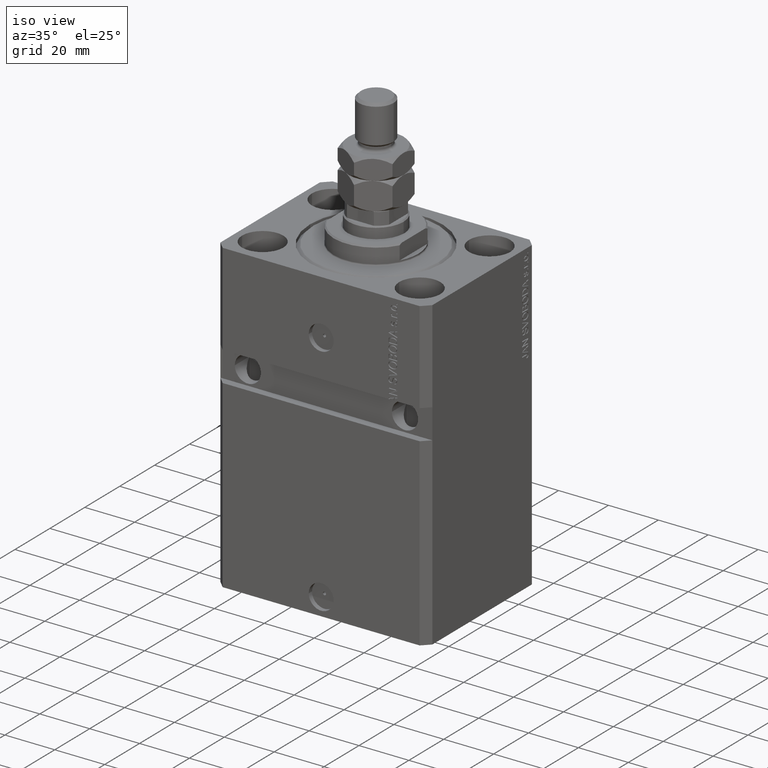
[diagram: clean part render]
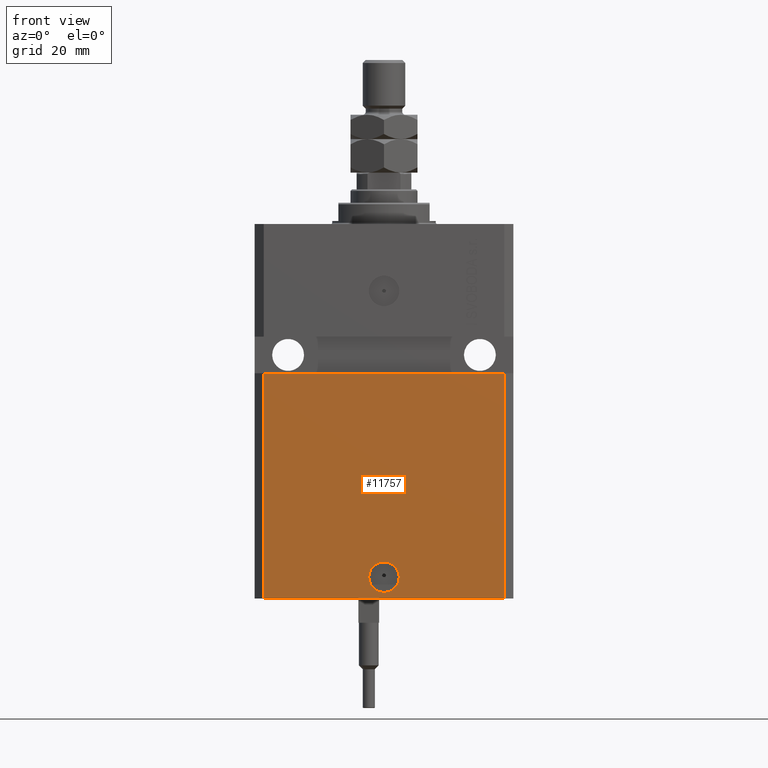
[diagram: tour spotlight — one face highlighted and labeled with its STEP entity id]
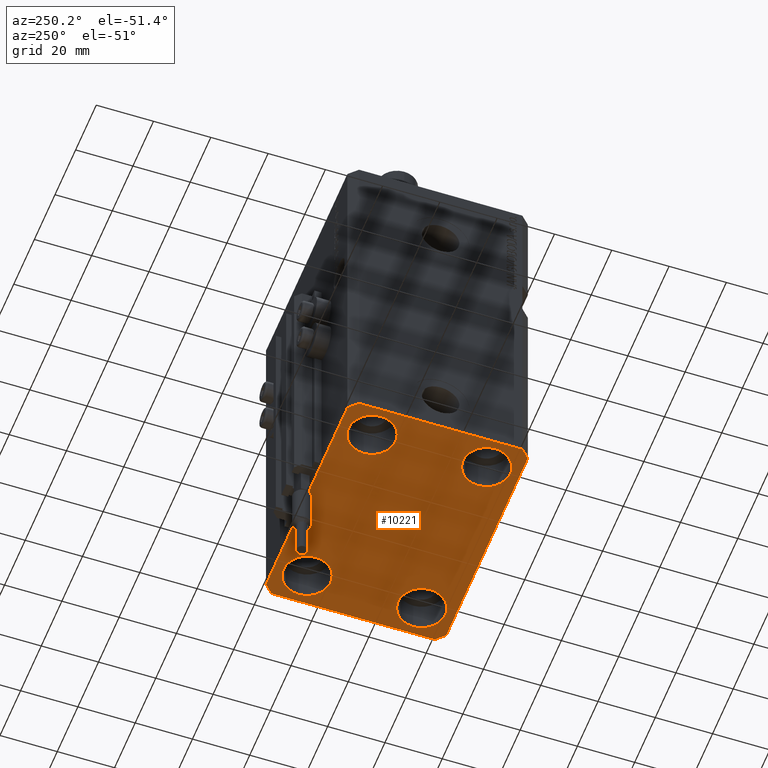
[diagram: tour spotlight — one face highlighted and labeled with its STEP entity id]
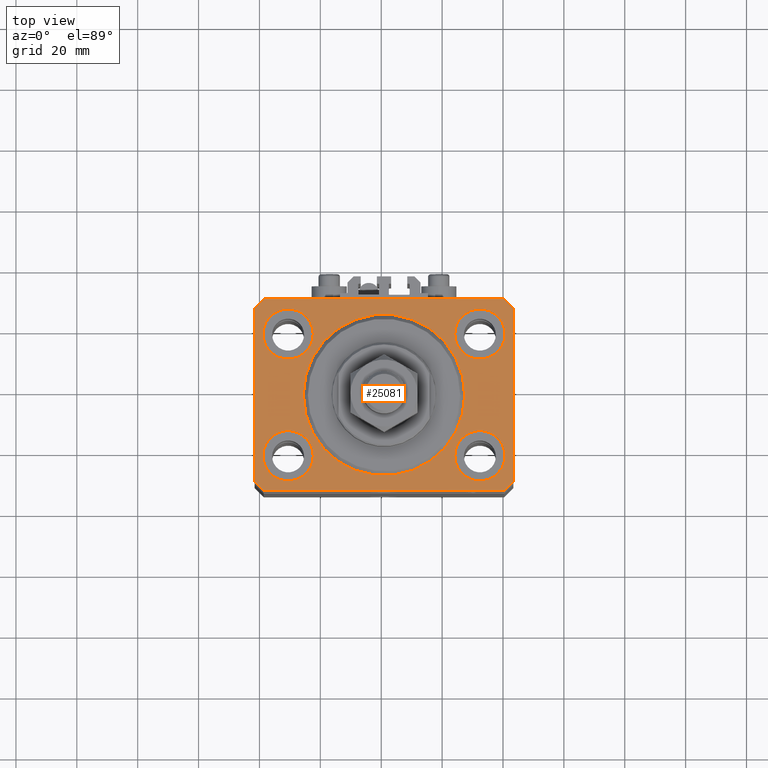
[diagram: tour spotlight — one face highlighted and labeled with its STEP entity id]
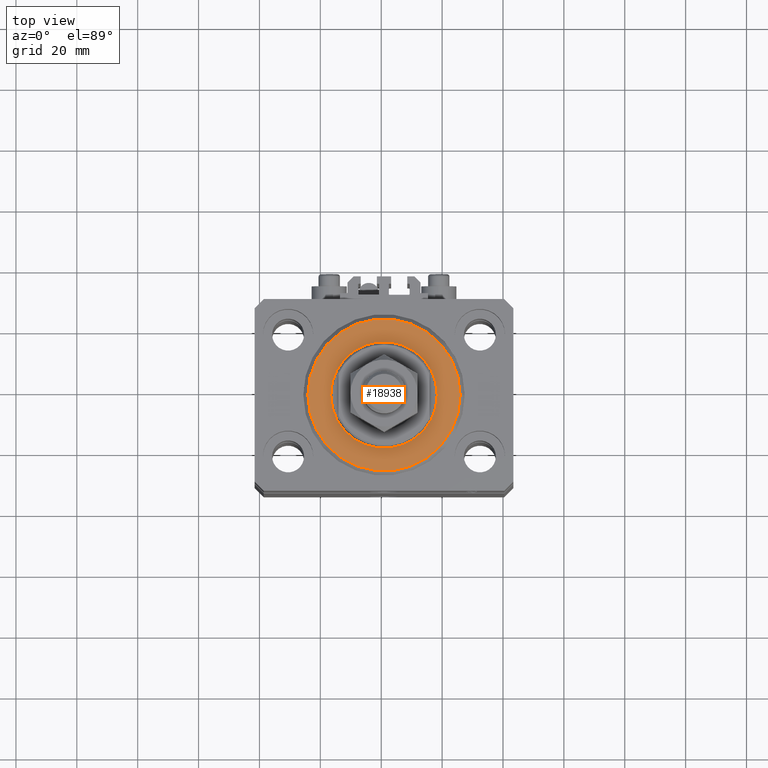
[diagram: tour spotlight — one face highlighted and labeled with its STEP entity id]
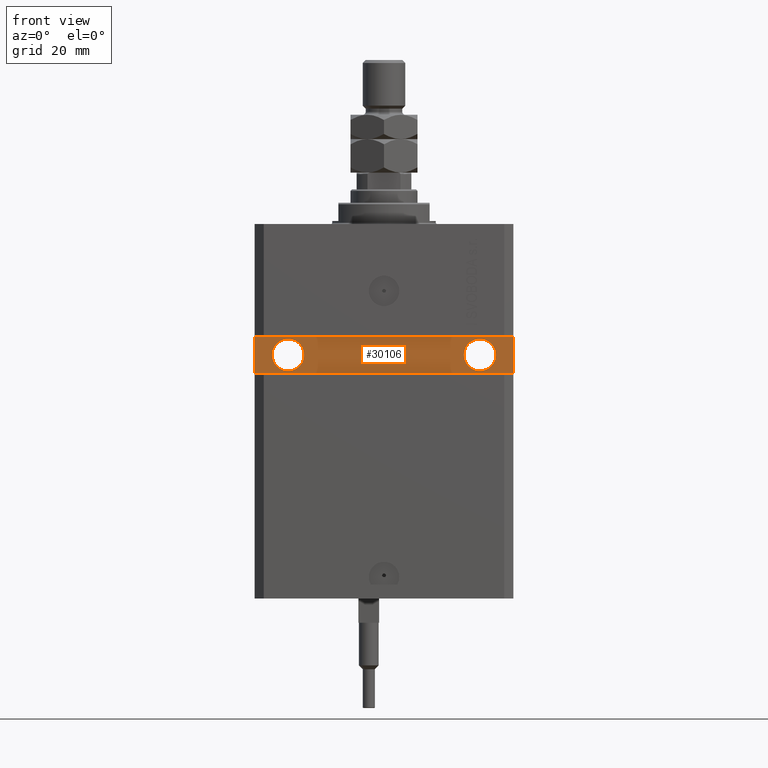
[diagram: tour spotlight — one face highlighted and labeled with its STEP entity id]
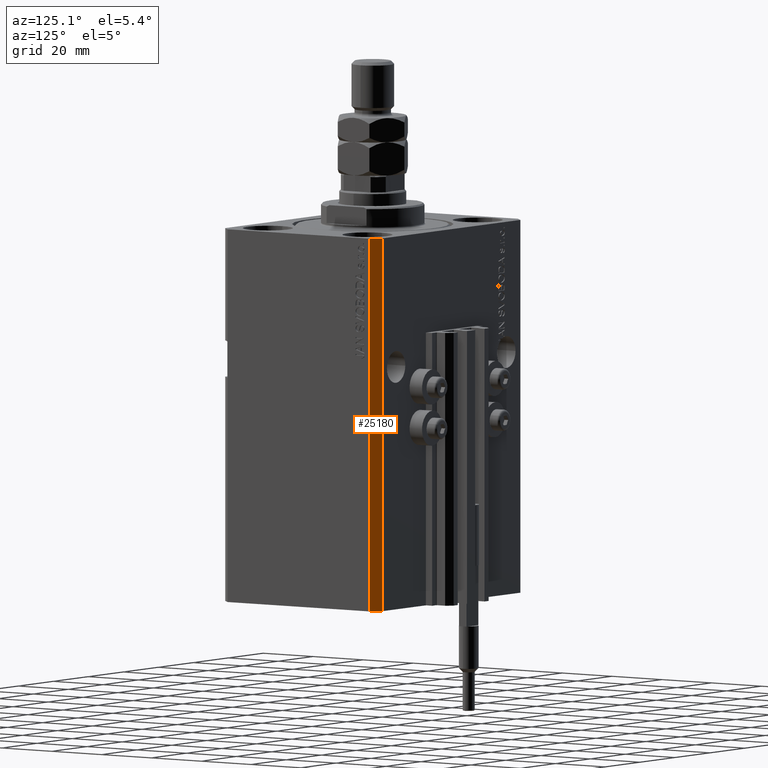
[diagram: tour spotlight — one face highlighted and labeled with its STEP entity id]
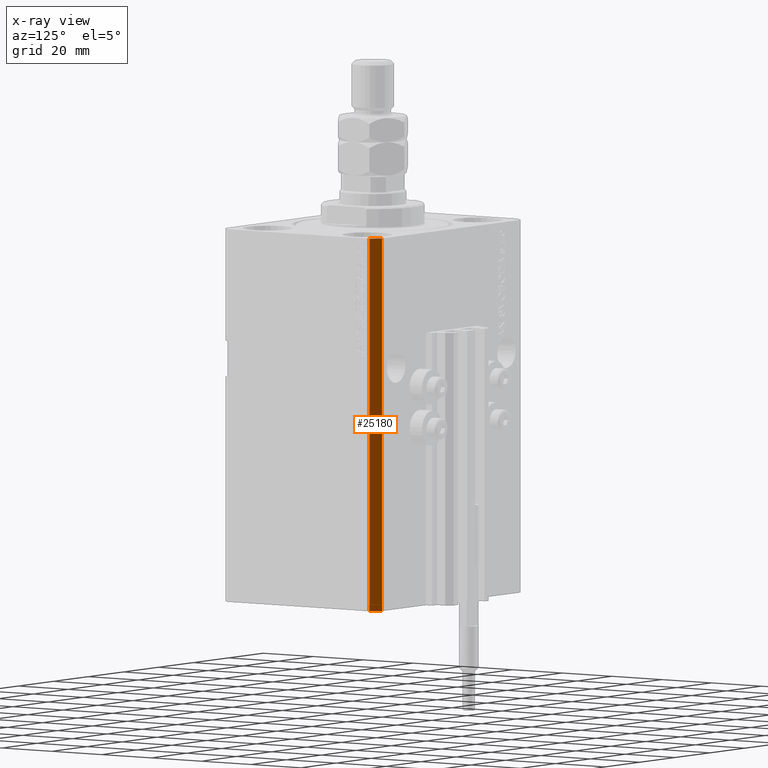
[diagram: x-ray of the same camera — body ghosted, this tour face saturated]
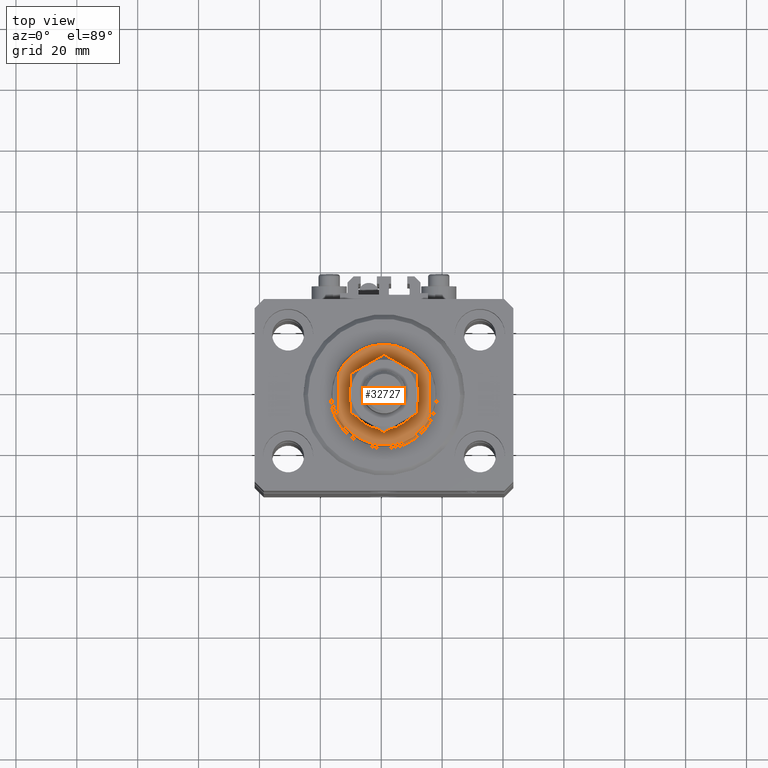
[diagram: tour spotlight — one face highlighted and labeled with its STEP entity id]
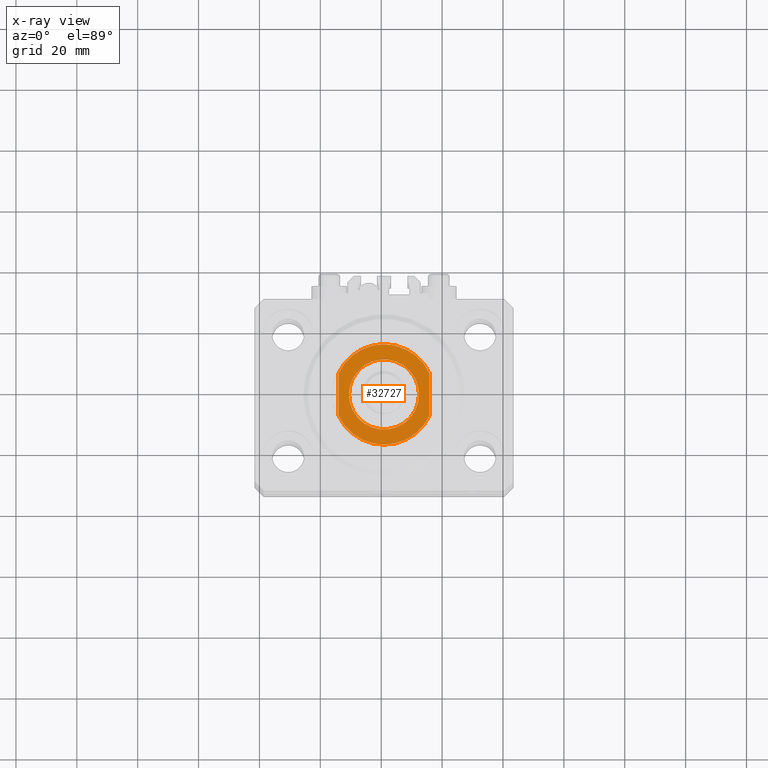
[diagram: x-ray of the same camera — body ghosted, this tour face saturated]
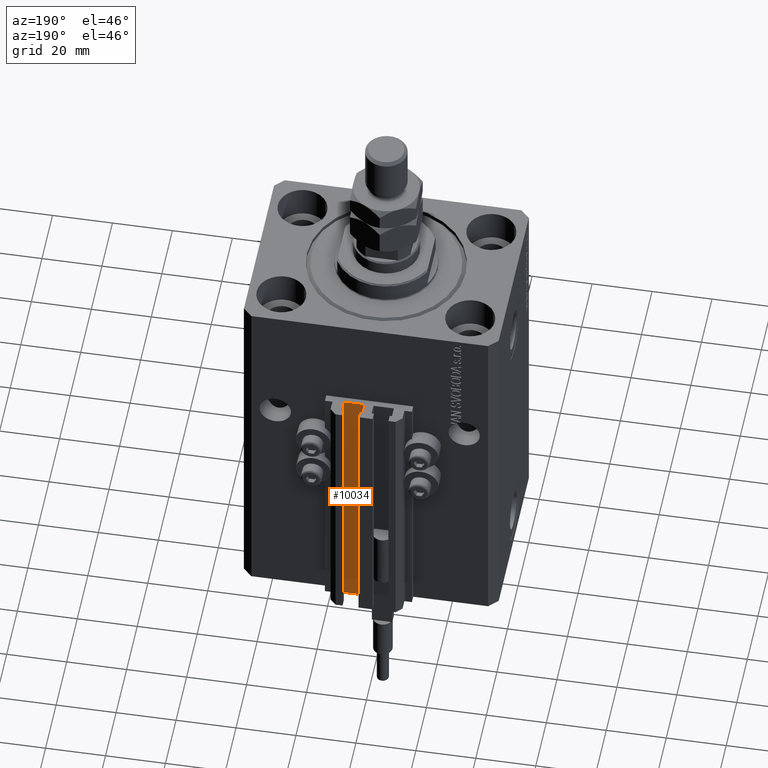
[diagram: tour spotlight — one face highlighted and labeled with its STEP entity id]
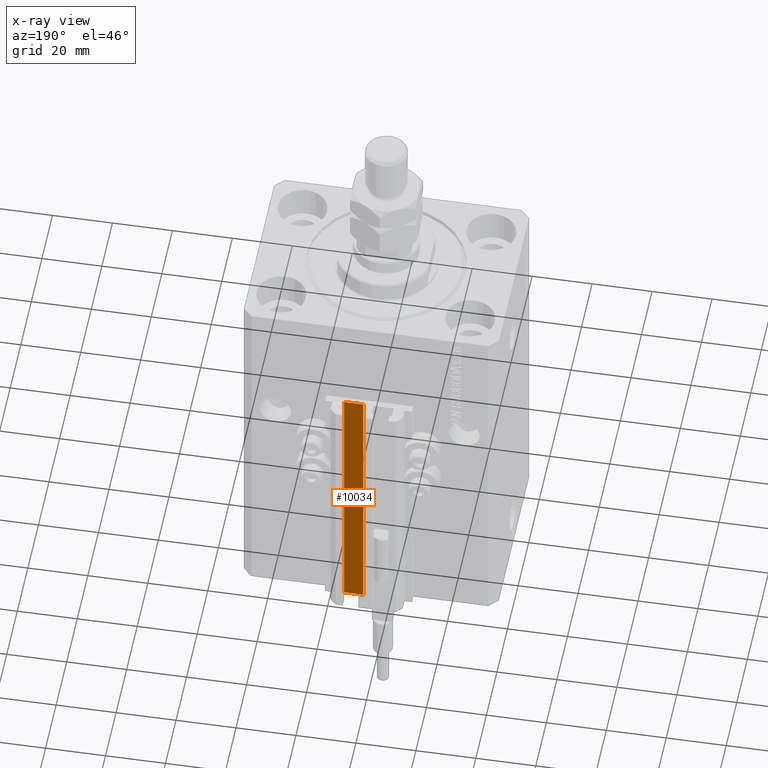
[diagram: x-ray of the same camera — body ghosted, this tour face saturated]
A machine part: a face-by-face anatomy tour. The part has 1162 B-rep faces; the first image is the clean iso view, then the 8 largest visible faces are spotlighted one at a time (largest first), each with its STEP entity span.

Face 1 — front view, entity #11757. In plain terms, the highlighted planar face has unit normal (0, -1, 0).
Definition (entity closure, byte-faithful):
#826 = DIRECTION ( 'NONE',  ( 1.000000000000000000, 0.000000000000000000, 0.000000000000000000 ) ) ;
#1818 = CARTESIAN_POINT ( 'NONE',  ( 5.000000000000006217, -31.50000000000000000, -115.9999999999999858 ) ) ;
#2065 = CARTESIAN_POINT ( 'NONE',  ( -42.50000000000000000, -31.50000000000000711, -48.99999999999999289 ) ) ;
#2698 = VECTOR ( 'NONE', #4410, 1000.000000000000000 ) ;
#3320 = EDGE_CURVE ( 'NONE', #8149, #11400, #28588, .T. ) ;
#3907 = AXIS2_PLACEMENT_3D ( 'NONE', #22185, #45175, #10301 ) ;
#4410 = DIRECTION ( 'NONE',  ( 0.000000000000000000, 0.000000000000000000, 1.000000000000000000 ) ) ;
#5959 = LINE ( 'NONE', #29212, #25489 ) ;
#7210 = EDGE_CURVE ( 'NONE', #41547, #46144, #14386, .T. ) ;
#8149 = VERTEX_POINT ( 'NONE', #22905 ) ;
#8655 = ORIENTED_EDGE ( 'NONE', *, *, #37027, .F. ) ;
#9597 = LINE ( 'NONE', #25024, #27015 ) ;
#10062 = ORIENTED_EDGE ( 'NONE', *, *, #28700, .F. ) ;
#10301 = DIRECTION ( 'NONE',  ( 1.000000000000000000, 0.000000000000000000, 0.000000000000000000 ) ) ;
#11400 = VERTEX_POINT ( 'NONE', #14114 ) ;
#11757 = ADVANCED_FACE ( 'NONE', ( #28987, #17616 ), #40846, .T. ) ;
#12668 = DIRECTION ( 'NONE',  ( 1.176083712526788232E-16, -1.000000000000000000, 0.000000000000000000 ) ) ;
#13101 = ORIENTED_EDGE ( 'NONE', *, *, #7210, .F. ) ;
#14114 = CARTESIAN_POINT ( 'NONE',  ( 39.50000000000001421, -31.49999999999999289, -48.99999999999997868 ) ) ;
#14386 = CIRCLE ( 'NONE', #44245, 5.000000000000006217 ) ;
#15277 = CARTESIAN_POINT ( 'NONE',  ( 39.50000000000000711, -31.50000000000000000, -123.0000000000000000 ) ) ;
#17616 = FACE_OUTER_BOUND ( 'NONE', #30912, .T. ) ;
#19065 = LINE ( 'NONE', #15277, #2698 ) ;
#20201 = ORIENTED_EDGE ( 'NONE', *, *, #25320, .T. ) ;
#20855 = VECTOR ( 'NONE', #21524, 1000.000000000000000 ) ;
#20902 = CARTESIAN_POINT ( 'NONE',  ( -39.50000000000000711, -31.50000000000000000, -123.0000000000000000 ) ) ;
#20996 = EDGE_LOOP ( 'NONE', ( #8655, #13101 ) ) ;
#21524 = DIRECTION ( 'NONE',  ( 1.000000000000000000, 1.632680918566406300E-16, 1.632680918566406300E-16 ) ) ;
#21971 = VERTEX_POINT ( 'NONE', #41926 ) ;
#22185 = CARTESIAN_POINT ( 'NONE',  ( 0.000000000000000000, -31.50000000000000000, -115.9999999999999858 ) ) ;
#22905 = CARTESIAN_POINT ( 'NONE',  ( -39.50000000000000000, -31.50000000000000711, -48.99999999999999289 ) ) ;
#23652 = EDGE_CURVE ( 'NONE', #34505, #11400, #19065, .T. ) ;
#24011 = CARTESIAN_POINT ( 'NONE',  ( -5.000000000000006217, -31.50000000000000000, -115.9999999999999858 ) ) ;
#25024 = CARTESIAN_POINT ( 'NONE',  ( -39.50000000000000711, -31.50000000000000000, -123.0000000000000000 ) ) ;
#25320 = EDGE_CURVE ( 'NONE', #21971, #34505, #9597, .T. ) ;
#25489 = VECTOR ( 'NONE', #47902, 1000.000000000000000 ) ;
#26542 = ORIENTED_EDGE ( 'NONE', *, *, #3320, .F. ) ;
#27015 = VECTOR ( 'NONE', #44466, 1000.000000000000000 ) ;
#28588 = LINE ( 'NONE', #2065, #20855 ) ;
#28700 = EDGE_CURVE ( 'NONE', #21971, #8149, #5959, .T. ) ;
#28987 = FACE_BOUND ( 'NONE', #20996, .T. ) ;
#29212 = CARTESIAN_POINT ( 'NONE',  ( -39.50000000000000711, -31.50000000000000000, -123.0000000000000000 ) ) ;
#29914 = AXIS2_PLACEMENT_3D ( 'NONE', #20902, #32520, #44129 ) ;
#30912 = EDGE_LOOP ( 'NONE', ( #26542, #10062, #20201, #48307 ) ) ;
#31876 = CARTESIAN_POINT ( 'NONE',  ( 0.000000000000000000, -31.50000000000000000, -115.9999999999999858 ) ) ;
#32520 = DIRECTION ( 'NONE',  ( 0.000000000000000000, -1.000000000000000000, 0.000000000000000000 ) ) ;
#34505 = VERTEX_POINT ( 'NONE', #44930 ) ;
#37027 = EDGE_CURVE ( 'NONE', #46144, #41547, #47463, .T. ) ;
#40846 = PLANE ( 'NONE',  #29914 ) ;
#41547 = VERTEX_POINT ( 'NONE', #24011 ) ;
#41926 = CARTESIAN_POINT ( 'NONE',  ( -39.50000000000000711, -31.50000000000000000, -123.0000000000000000 ) ) ;
#44129 = DIRECTION ( 'NONE',  ( 0.000000000000000000, -0.000000000000000000, -1.000000000000000000 ) ) ;
#44245 = AXIS2_PLACEMENT_3D ( 'NONE', #31876, #12668, #826 ) ;
#44466 = DIRECTION ( 'NONE',  ( 1.000000000000000000, 0.000000000000000000, 0.000000000000000000 ) ) ;
#44930 = CARTESIAN_POINT ( 'NONE',  ( 39.50000000000000711, -31.50000000000000000, -123.0000000000000000 ) ) ;
#45175 = DIRECTION ( 'NONE',  ( 1.176083712526788232E-16, -1.000000000000000000, 0.000000000000000000 ) ) ;
#46144 = VERTEX_POINT ( 'NONE', #1818 ) ;
#47463 = CIRCLE ( 'NONE', #3907, 5.000000000000006217 ) ;
#47902 = DIRECTION ( 'NONE',  ( 0.000000000000000000, 0.000000000000000000, 1.000000000000000000 ) ) ;
#48307 = ORIENTED_EDGE ( 'NONE', *, *, #23652, .T. ) ;

Face 2 — auxiliary view, entity #10221. In plain terms, the highlighted planar face has unit normal (0, 0, 1).
Definition (entity closure, byte-faithful):
#176 = LINE ( 'NONE', #4459, #43998 ) ;
#262 = EDGE_LOOP ( 'NONE', ( #14412, #7408 ) ) ;
#329 = CARTESIAN_POINT ( 'NONE',  ( -39.75000000000000000, 20.00000000000000000, -123.0000000000000000 ) ) ;
#656 = EDGE_CURVE ( 'NONE', #2570, #36594, #20744, .T. ) ;
#1045 = AXIS2_PLACEMENT_3D ( 'NONE', #9435, #47113, #35975 ) ;
#1192 = CARTESIAN_POINT ( 'NONE',  ( -31.50000000000000000, -20.00000000000000000, -123.0000000000000000 ) ) ;
#2570 = VERTEX_POINT ( 'NONE', #27298 ) ;
#3130 = ORIENTED_EDGE ( 'NONE', *, *, #47936, .F. ) ;
#3659 = VECTOR ( 'NONE', #34413, 1000.000000000000000 ) ;
#3822 = DIRECTION ( 'NONE',  ( 1.000000000000000000, 0.000000000000000000, 0.000000000000000000 ) ) ;
#4459 = CARTESIAN_POINT ( 'NONE',  ( -39.50000000000000711, 31.50000000000000000, -123.0000000000000000 ) ) ;
#4937 = VERTEX_POINT ( 'NONE', #42887 ) ;
#5018 = EDGE_CURVE ( 'NONE', #39440, #45350, #30564, .T. ) ;
#5501 = DIRECTION ( 'NONE',  ( 0.7071067811865483499, 0.7071067811865466846, 0.000000000000000000 ) ) ;
#6425 = EDGE_CURVE ( 'NONE', #45350, #39440, #25692, .T. ) ;
#6484 = LINE ( 'NONE', #37294, #9333 ) ;
#6830 = FACE_BOUND ( 'NONE', #21478, .T. ) ;
#6968 = AXIS2_PLACEMENT_3D ( 'NONE', #34160, #38451, #7377 ) ;
#7377 = DIRECTION ( 'NONE',  ( 1.000000000000000000, 0.000000000000000000, 0.000000000000000000 ) ) ;
#7388 = CARTESIAN_POINT ( 'NONE',  ( -42.50000000000000000, 28.50000000000000000, -123.0000000000000000 ) ) ;
#7408 = ORIENTED_EDGE ( 'NONE', *, *, #43603, .T. ) ;
#7631 = CARTESIAN_POINT ( 'NONE',  ( 31.50000000000000000, -20.00000000000000000, -123.0000000000000000 ) ) ;
#7661 = DIRECTION ( 'NONE',  ( -0.000000000000000000, -0.000000000000000000, 1.000000000000000000 ) ) ;
#7878 = LINE ( 'NONE', #42246, #3659 ) ;
#8133 = ORIENTED_EDGE ( 'NONE', *, *, #5018, .T. ) ;
#8617 = EDGE_CURVE ( 'NONE', #4937, #21210, #18461, .T. ) ;
#8764 = AXIS2_PLACEMENT_3D ( 'NONE', #9496, #32259, #39840 ) ;
#9333 = VECTOR ( 'NONE', #40351, 1000.000000000000114 ) ;
#9435 = CARTESIAN_POINT ( 'NONE',  ( 31.50000000000000000, 20.00000000000001066, -123.0000000000000000 ) ) ;
#9496 = CARTESIAN_POINT ( 'NONE',  ( -31.50000000000000000, 20.00000000000000000, -123.0000000000000000 ) ) ;
#9597 = LINE ( 'NONE', #25024, #27015 ) ;
#9810 = EDGE_LOOP ( 'NONE', ( #22267, #8133 ) ) ;
#10221 = ADVANCED_FACE ( 'NONE', ( #14666, #11127, #6830, #15419, #37902 ), #41699, .F. ) ;
#10823 = ORIENTED_EDGE ( 'NONE', *, *, #23506, .F. ) ;
#10871 = DIRECTION ( 'NONE',  ( 0.000000000000000000, 0.000000000000000000, 1.000000000000000000 ) ) ;
#11127 = FACE_BOUND ( 'NONE', #34257, .T. ) ;
#11288 = AXIS2_PLACEMENT_3D ( 'NONE', #29850, #10871, #26555 ) ;
#11462 = CARTESIAN_POINT ( 'NONE',  ( 31.50000000000000000, 20.00000000000001066, -123.0000000000000000 ) ) ;
#11711 = DIRECTION ( 'NONE',  ( 1.000000000000000000, 0.000000000000000000, 0.000000000000000000 ) ) ;
#12061 = VERTEX_POINT ( 'NONE', #16250 ) ;
#12656 = ORIENTED_EDGE ( 'NONE', *, *, #32422, .F. ) ;
#12721 = VERTEX_POINT ( 'NONE', #42850 ) ;
#12762 = VERTEX_POINT ( 'NONE', #47135 ) ;
#13272 = LINE ( 'NONE', #17578, #22272 ) ;
#13661 = CARTESIAN_POINT ( 'NONE',  ( 39.74999999999999289, -20.00000000000000000, -123.0000000000000000 ) ) ;
#13714 = ORIENTED_EDGE ( 'NONE', *, *, #17821, .T. ) ;
#13973 = VERTEX_POINT ( 'NONE', #25095 ) ;
#14130 = CARTESIAN_POINT ( 'NONE',  ( 42.50000000000051870, 28.49999999999995381, -123.0000000000000000 ) ) ;
#14412 = ORIENTED_EDGE ( 'NONE', *, *, #31532, .T. ) ;
#14666 = FACE_BOUND ( 'NONE', #262, .T. ) ;
#14775 = CARTESIAN_POINT ( 'NONE',  ( 39.50000000000056843, 31.50000000000000000, -123.0000000000000000 ) ) ;
#15074 = AXIS2_PLACEMENT_3D ( 'NONE', #7631, #37454, #26855 ) ;
#15419 = FACE_BOUND ( 'NONE', #9810, .T. ) ;
#15695 = CARTESIAN_POINT ( 'NONE',  ( 39.74999999999999289, 20.00000000000001066, -123.0000000000000000 ) ) ;
#16250 = CARTESIAN_POINT ( 'NONE',  ( -42.50000000000000000, -28.50000000000000000, -123.0000000000000000 ) ) ;
#16597 = DIRECTION ( 'NONE',  ( -0.000000000000000000, -0.000000000000000000, 1.000000000000000000 ) ) ;
#17578 = CARTESIAN_POINT ( 'NONE',  ( 42.50000000000000711, -28.50000000000000355, -123.0000000000000000 ) ) ;
#17676 = VERTEX_POINT ( 'NONE', #26686 ) ;
#17821 = EDGE_CURVE ( 'NONE', #21210, #4937, #44606, .T. ) ;
#18461 = CIRCLE ( 'NONE', #25764, 8.249999999999992895 ) ;
#18961 = ORIENTED_EDGE ( 'NONE', *, *, #27092, .F. ) ;
#19039 = CARTESIAN_POINT ( 'NONE',  ( -42.50000000000000000, -28.50000000000000000, -123.0000000000000000 ) ) ;
#19585 = VECTOR ( 'NONE', #29936, 1000.000000000000000 ) ;
#19827 = EDGE_CURVE ( 'NONE', #12061, #21971, #22351, .T. ) ;
#20744 = CIRCLE ( 'NONE', #15074, 8.249999999999992895 ) ;
#21210 = VERTEX_POINT ( 'NONE', #15695 ) ;
#21322 = CARTESIAN_POINT ( 'NONE',  ( 39.50000000000056843, 31.50000000000000000, -123.0000000000000000 ) ) ;
#21478 = EDGE_LOOP ( 'NONE', ( #38661, #13714 ) ) ;
#21971 = VERTEX_POINT ( 'NONE', #41926 ) ;
#22267 = ORIENTED_EDGE ( 'NONE', *, *, #6425, .T. ) ;
#22272 = VECTOR ( 'NONE', #33232, 1000.000000000000000 ) ;
#22351 = LINE ( 'NONE', #19039, #19585 ) ;
#23277 = AXIS2_PLACEMENT_3D ( 'NONE', #25078, #44006, #36176 ) ;
#23506 = EDGE_CURVE ( 'NONE', #29165, #17676, #41068, .T. ) ;
#23680 = ORIENTED_EDGE ( 'NONE', *, *, #27701, .F. ) ;
#25024 = CARTESIAN_POINT ( 'NONE',  ( -39.50000000000000711, -31.50000000000000000, -123.0000000000000000 ) ) ;
#25078 = CARTESIAN_POINT ( 'NONE',  ( -31.50000000000000000, 20.00000000000000000, -123.0000000000000000 ) ) ;
#25095 = CARTESIAN_POINT ( 'NONE',  ( -39.75000000000000000, -20.00000000000000000, -123.0000000000000000 ) ) ;
#25320 = EDGE_CURVE ( 'NONE', #21971, #34505, #9597, .T. ) ;
#25692 = CIRCLE ( 'NONE', #23277, 8.250000000000000000 ) ;
#25764 = AXIS2_PLACEMENT_3D ( 'NONE', #11462, #7661, #11711 ) ;
#26555 = DIRECTION ( 'NONE',  ( 1.000000000000000000, 0.000000000000000000, -0.000000000000000000 ) ) ;
#26686 = CARTESIAN_POINT ( 'NONE',  ( -39.50000000000000711, 31.50000000000000000, -123.0000000000000000 ) ) ;
#26855 = DIRECTION ( 'NONE',  ( 1.000000000000000000, 0.000000000000000000, 0.000000000000000000 ) ) ;
#27015 = VECTOR ( 'NONE', #44466, 1000.000000000000000 ) ;
#27092 = EDGE_CURVE ( 'NONE', #33826, #12061, #7878, .T. ) ;
#27298 = CARTESIAN_POINT ( 'NONE',  ( 23.25000000000000355, -20.00000000000000000, -123.0000000000000000 ) ) ;
#27596 = CARTESIAN_POINT ( 'NONE',  ( -23.25000000000000000, 20.00000000000000000, -123.0000000000000000 ) ) ;
#27701 = EDGE_CURVE ( 'NONE', #34505, #12762, #47703, .T. ) ;
#28113 = ORIENTED_EDGE ( 'NONE', *, *, #25320, .F. ) ;
#28597 = ORIENTED_EDGE ( 'NONE', *, *, #19827, .F. ) ;
#29165 = VERTEX_POINT ( 'NONE', #21322 ) ;
#29818 = CIRCLE ( 'NONE', #48378, 8.250000000000000000 ) ;
#29850 = CARTESIAN_POINT ( 'NONE',  ( 0.000000000000000000, 0.000000000000000000, -123.0000000000000000 ) ) ;
#29936 = DIRECTION ( 'NONE',  ( 0.7071067811865471286, -0.7071067811865479058, 0.000000000000000000 ) ) ;
#30564 = CIRCLE ( 'NONE', #8764, 8.250000000000000000 ) ;
#31532 = EDGE_CURVE ( 'NONE', #13973, #12721, #31929, .T. ) ;
#31929 = CIRCLE ( 'NONE', #39981, 8.250000000000000000 ) ;
#32008 = EDGE_LOOP ( 'NONE', ( #10823, #12656, #3130, #23680, #28113, #28597, #18961, #48483 ) ) ;
#32013 = DIRECTION ( 'NONE',  ( 1.000000000000000000, 0.000000000000000000, 0.000000000000000000 ) ) ;
#32259 = DIRECTION ( 'NONE',  ( -0.000000000000000000, -0.000000000000000000, 1.000000000000000000 ) ) ;
#32422 = EDGE_CURVE ( 'NONE', #43846, #29165, #6484, .T. ) ;
#33232 = DIRECTION ( 'NONE',  ( 8.886653596232072440E-15, 1.000000000000000000, 0.000000000000000000 ) ) ;
#33252 = EDGE_CURVE ( 'NONE', #36594, #2570, #43293, .T. ) ;
#33826 = VERTEX_POINT ( 'NONE', #7388 ) ;
#34160 = CARTESIAN_POINT ( 'NONE',  ( 31.50000000000000000, -20.00000000000000000, -123.0000000000000000 ) ) ;
#34257 = EDGE_LOOP ( 'NONE', ( #40907, #35212 ) ) ;
#34413 = DIRECTION ( 'NONE',  ( 0.000000000000000000, -1.000000000000000000, 0.000000000000000000 ) ) ;
#34505 = VERTEX_POINT ( 'NONE', #44930 ) ;
#34651 = DIRECTION ( 'NONE',  ( -0.000000000000000000, -0.000000000000000000, 1.000000000000000000 ) ) ;
#35212 = ORIENTED_EDGE ( 'NONE', *, *, #33252, .T. ) ;
#35975 = DIRECTION ( 'NONE',  ( 1.000000000000000000, 0.000000000000000000, 0.000000000000000000 ) ) ;
#36176 = DIRECTION ( 'NONE',  ( 1.000000000000000000, 0.000000000000000000, 0.000000000000000000 ) ) ;
#36594 = VERTEX_POINT ( 'NONE', #13661 ) ;
#37294 = CARTESIAN_POINT ( 'NONE',  ( 42.50000000000051870, 28.49999999999995381, -123.0000000000000000 ) ) ;
#37454 = DIRECTION ( 'NONE',  ( -0.000000000000000000, -0.000000000000000000, 1.000000000000000000 ) ) ;
#37508 = DIRECTION ( 'NONE',  ( -1.000000000000000000, 0.000000000000000000, 0.000000000000000000 ) ) ;
#37902 = FACE_OUTER_BOUND ( 'NONE', #32008, .T. ) ;
#38451 = DIRECTION ( 'NONE',  ( -0.000000000000000000, -0.000000000000000000, 1.000000000000000000 ) ) ;
#38661 = ORIENTED_EDGE ( 'NONE', *, *, #8617, .T. ) ;
#39440 = VERTEX_POINT ( 'NONE', #27596 ) ;
#39840 = DIRECTION ( 'NONE',  ( 1.000000000000000000, 0.000000000000000000, 0.000000000000000000 ) ) ;
#39981 = AXIS2_PLACEMENT_3D ( 'NONE', #1192, #16597, #32013 ) ;
#40123 = CARTESIAN_POINT ( 'NONE',  ( 39.50000000000000711, -31.50000000000000000, -123.0000000000000000 ) ) ;
#40351 = DIRECTION ( 'NONE',  ( -0.7071067811865356934, 0.7071067811865594521, 0.000000000000000000 ) ) ;
#40907 = ORIENTED_EDGE ( 'NONE', *, *, #656, .T. ) ;
#41068 = LINE ( 'NONE', #14775, #46263 ) ;
#41699 = PLANE ( 'NONE',  #11288 ) ;
#41926 = CARTESIAN_POINT ( 'NONE',  ( -39.50000000000000711, -31.50000000000000000, -123.0000000000000000 ) ) ;
#42246 = CARTESIAN_POINT ( 'NONE',  ( -42.50000000000000000, 28.50000000000000000, -123.0000000000000000 ) ) ;
#42729 = CARTESIAN_POINT ( 'NONE',  ( -31.50000000000000000, -20.00000000000000000, -123.0000000000000000 ) ) ;
#42850 = CARTESIAN_POINT ( 'NONE',  ( -23.25000000000000000, -20.00000000000000000, -123.0000000000000000 ) ) ;
#42887 = CARTESIAN_POINT ( 'NONE',  ( 23.25000000000000355, 20.00000000000001066, -123.0000000000000000 ) ) ;
#43293 = CIRCLE ( 'NONE', #6968, 8.249999999999992895 ) ;
#43603 = EDGE_CURVE ( 'NONE', #12721, #13973, #29818, .T. ) ;
#43846 = VERTEX_POINT ( 'NONE', #14130 ) ;
#43998 = VECTOR ( 'NONE', #44024, 1000.000000000000000 ) ;
#44006 = DIRECTION ( 'NONE',  ( -0.000000000000000000, -0.000000000000000000, 1.000000000000000000 ) ) ;
#44024 = DIRECTION ( 'NONE',  ( -0.7071067811865471286, -0.7071067811865479058, 0.000000000000000000 ) ) ;
#44466 = DIRECTION ( 'NONE',  ( 1.000000000000000000, 0.000000000000000000, 0.000000000000000000 ) ) ;
#44606 = CIRCLE ( 'NONE', #1045, 8.249999999999992895 ) ;
#44930 = CARTESIAN_POINT ( 'NONE',  ( 39.50000000000000711, -31.50000000000000000, -123.0000000000000000 ) ) ;
#45350 = VERTEX_POINT ( 'NONE', #329 ) ;
#46263 = VECTOR ( 'NONE', #37508, 1000.000000000000000 ) ;
#46958 = EDGE_CURVE ( 'NONE', #17676, #33826, #176, .T. ) ;
#47113 = DIRECTION ( 'NONE',  ( -0.000000000000000000, -0.000000000000000000, 1.000000000000000000 ) ) ;
#47135 = CARTESIAN_POINT ( 'NONE',  ( 42.50000000000000711, -28.50000000000000355, -123.0000000000000000 ) ) ;
#47703 = LINE ( 'NONE', #40123, #49628 ) ;
#47936 = EDGE_CURVE ( 'NONE', #12762, #43846, #13272, .T. ) ;
#48378 = AXIS2_PLACEMENT_3D ( 'NONE', #42729, #34651, #3822 ) ;
#48483 = ORIENTED_EDGE ( 'NONE', *, *, #46958, .F. ) ;
#49628 = VECTOR ( 'NONE', #5501, 1000.000000000000000 ) ;

Face 3 — top view, entity #25081. In plain terms, the highlighted planar face has unit normal (0, 0, 1).
Definition (entity closure, byte-faithful):
#940 = DIRECTION ( 'NONE',  ( 0.7071067811865483499, 0.7071067811865466846, 0.000000000000000000 ) ) ;
#1401 = EDGE_CURVE ( 'NONE', #6953, #1451, #33426, .T. ) ;
#1451 = VERTEX_POINT ( 'NONE', #44794 ) ;
#1606 = CARTESIAN_POINT ( 'NONE',  ( -31.50000000000000000, -20.00000000000000000, 0.000000000000000000 ) ) ;
#2426 = EDGE_CURVE ( 'NONE', #7481, #8968, #14663, .T. ) ;
#2472 = AXIS2_PLACEMENT_3D ( 'NONE', #15358, #42646, #39092 ) ;
#2652 = FACE_BOUND ( 'NONE', #26443, .T. ) ;
#2851 = DIRECTION ( 'NONE',  ( 1.000000000000000000, 0.000000000000000000, 0.000000000000000000 ) ) ;
#2897 = FACE_BOUND ( 'NONE', #11957, .T. ) ;
#2921 = VERTEX_POINT ( 'NONE', #8033 ) ;
#3358 = CARTESIAN_POINT ( 'NONE',  ( 42.50000000000000711, -28.50000000000000355, 0.000000000000000000 ) ) ;
#3817 = CARTESIAN_POINT ( 'NONE',  ( -42.50000000000000000, 28.50000000000000000, 0.000000000000000000 ) ) ;
#4449 = LINE ( 'NONE', #19866, #39738 ) ;
#5041 = EDGE_CURVE ( 'NONE', #27590, #18912, #44169, .T. ) ;
#5174 = DIRECTION ( 'NONE',  ( 0.7071067811865471286, -0.7071067811865479058, 0.000000000000000000 ) ) ;
#5690 = PLANE ( 'NONE',  #12464 ) ;
#6253 = CARTESIAN_POINT ( 'NONE',  ( 23.25000000000000355, -20.00000000000000000, 0.000000000000000000 ) ) ;
#6337 = DIRECTION ( 'NONE',  ( -0.7071067811865471286, -0.7071067811865479058, 0.000000000000000000 ) ) ;
#6360 = CIRCLE ( 'NONE', #21701, 8.249999999999992895 ) ;
#6435 = FACE_BOUND ( 'NONE', #44086, .T. ) ;
#6531 = CARTESIAN_POINT ( 'NONE',  ( 42.50000000000051870, 28.49999999999995381, 0.000000000000000000 ) ) ;
#6683 = VECTOR ( 'NONE', #48330, 1000.000000000000114 ) ;
#6953 = VERTEX_POINT ( 'NONE', #37801 ) ;
#7230 = DIRECTION ( 'NONE',  ( 0.000000000000000000, 0.000000000000000000, 1.000000000000000000 ) ) ;
#7463 = DIRECTION ( 'NONE',  ( 0.000000000000000000, 0.000000000000000000, 1.000000000000000000 ) ) ;
#7481 = VERTEX_POINT ( 'NONE', #18288 ) ;
#8033 = CARTESIAN_POINT ( 'NONE',  ( -23.25000000000000000, -20.00000000000000000, 0.000000000000000000 ) ) ;
#8433 = VERTEX_POINT ( 'NONE', #9961 ) ;
#8752 = LINE ( 'NONE', #36273, #21197 ) ;
#8914 = CIRCLE ( 'NONE', #2472, 26.50000000000000355 ) ;
#8968 = VERTEX_POINT ( 'NONE', #3817 ) ;
#9168 = DIRECTION ( 'NONE',  ( 1.000000000000000000, 0.000000000000000000, 0.000000000000000000 ) ) ;
#9606 = DIRECTION ( 'NONE',  ( 0.000000000000000000, 0.000000000000000000, 1.000000000000000000 ) ) ;
#9830 = AXIS2_PLACEMENT_3D ( 'NONE', #47517, #9606, #25036 ) ;
#9961 = CARTESIAN_POINT ( 'NONE',  ( -42.50000000000000000, -28.50000000000000000, 0.000000000000000000 ) ) ;
#9971 = ORIENTED_EDGE ( 'NONE', *, *, #45581, .F. ) ;
#10718 = CIRCLE ( 'NONE', #19618, 8.249999999999992895 ) ;
#10845 = VERTEX_POINT ( 'NONE', #13178 ) ;
#11261 = CARTESIAN_POINT ( 'NONE',  ( 31.50000000000000000, -20.00000000000000000, 0.000000000000000000 ) ) ;
#11957 = EDGE_LOOP ( 'NONE', ( #47982, #39989 ) ) ;
#12263 = CIRCLE ( 'NONE', #19511, 8.250000000000000000 ) ;
#12346 = CARTESIAN_POINT ( 'NONE',  ( -31.50000000000000000, -20.00000000000000000, 0.000000000000000000 ) ) ;
#12464 = AXIS2_PLACEMENT_3D ( 'NONE', #48632, #45095, #21107 ) ;
#12479 = CARTESIAN_POINT ( 'NONE',  ( 0.000000000000000000, 0.000000000000000000, 0.000000000000000000 ) ) ;
#12532 = ORIENTED_EDGE ( 'NONE', *, *, #22915, .T. ) ;
#12898 = EDGE_CURVE ( 'NONE', #18912, #27590, #21060, .T. ) ;
#13178 = CARTESIAN_POINT ( 'NONE',  ( 23.25000000000000355, 20.00000000000001066, 0.000000000000000000 ) ) ;
#13287 = VECTOR ( 'NONE', #31452, 1000.000000000000000 ) ;
#13732 = VERTEX_POINT ( 'NONE', #43595 ) ;
#14165 = CARTESIAN_POINT ( 'NONE',  ( -39.50000000000000711, 31.50000000000000000, 0.000000000000000000 ) ) ;
#14264 = FACE_OUTER_BOUND ( 'NONE', #27035, .T. ) ;
#14361 = DIRECTION ( 'NONE',  ( 8.886653596232072440E-15, 1.000000000000000000, 0.000000000000000000 ) ) ;
#14663 = LINE ( 'NONE', #14165, #33718 ) ;
#14697 = CIRCLE ( 'NONE', #30875, 8.249999999999992895 ) ;
#14760 = EDGE_CURVE ( 'NONE', #2921, #46570, #12263, .T. ) ;
#14810 = CARTESIAN_POINT ( 'NONE',  ( 31.50000000000000000, -20.00000000000000000, 0.000000000000000000 ) ) ;
#15358 = CARTESIAN_POINT ( 'NONE',  ( 0.000000000000000000, 0.000000000000000000, 0.000000000000000000 ) ) ;
#15416 = EDGE_CURVE ( 'NONE', #13732, #10845, #15511, .T. ) ;
#15511 = CIRCLE ( 'NONE', #9830, 8.249999999999992895 ) ;
#16164 = CARTESIAN_POINT ( 'NONE',  ( 26.50000000000000355, 0.000000000000000000, 0.000000000000000000 ) ) ;
#16567 = EDGE_CURVE ( 'NONE', #1451, #18050, #8752, .T. ) ;
#16763 = DIRECTION ( 'NONE',  ( 0.000000000000000000, 0.000000000000000000, 1.000000000000000000 ) ) ;
#17746 = CARTESIAN_POINT ( 'NONE',  ( -26.50000000000000355, 3.245314017740485765E-15, 0.000000000000000000 ) ) ;
#17771 = LINE ( 'NONE', #33174, #6683 ) ;
#18050 = VERTEX_POINT ( 'NONE', #3358 ) ;
#18063 = FACE_BOUND ( 'NONE', #40715, .T. ) ;
#18288 = CARTESIAN_POINT ( 'NONE',  ( -39.50000000000000711, 31.50000000000000000, 0.000000000000000000 ) ) ;
#18625 = EDGE_CURVE ( 'NONE', #18050, #40635, #29793, .T. ) ;
#18912 = VERTEX_POINT ( 'NONE', #26638 ) ;
#18952 = CIRCLE ( 'NONE', #35937, 26.50000000000000355 ) ;
#19335 = ORIENTED_EDGE ( 'NONE', *, *, #16567, .T. ) ;
#19445 = EDGE_CURVE ( 'NONE', #32781, #43920, #14697, .T. ) ;
#19511 = AXIS2_PLACEMENT_3D ( 'NONE', #12346, #43899, #32538 ) ;
#19610 = EDGE_CURVE ( 'NONE', #8433, #6953, #4449, .T. ) ;
#19618 = AXIS2_PLACEMENT_3D ( 'NONE', #20675, #28748, #28496 ) ;
#19696 = DIRECTION ( 'NONE',  ( -1.000000000000000000, 0.000000000000000000, 0.000000000000000000 ) ) ;
#19866 = CARTESIAN_POINT ( 'NONE',  ( -42.50000000000000000, -28.50000000000000000, 0.000000000000000000 ) ) ;
#20675 = CARTESIAN_POINT ( 'NONE',  ( 31.50000000000000000, 20.00000000000001066, 0.000000000000000000 ) ) ;
#20679 = CIRCLE ( 'NONE', #44082, 8.250000000000000000 ) ;
#21060 = CIRCLE ( 'NONE', #39598, 8.250000000000000000 ) ;
#21107 = DIRECTION ( 'NONE',  ( 1.000000000000000000, 0.000000000000000000, -0.000000000000000000 ) ) ;
#21197 = VECTOR ( 'NONE', #940, 1000.000000000000000 ) ;
#21701 = AXIS2_PLACEMENT_3D ( 'NONE', #11261, #7463, #39034 ) ;
#21853 = ORIENTED_EDGE ( 'NONE', *, *, #26800, .T. ) ;
#22312 = EDGE_CURVE ( 'NONE', #10845, #13732, #10718, .T. ) ;
#22915 = EDGE_CURVE ( 'NONE', #40635, #32718, #17771, .T. ) ;
#23298 = ORIENTED_EDGE ( 'NONE', *, *, #19445, .F. ) ;
#23413 = CARTESIAN_POINT ( 'NONE',  ( -31.50000000000000000, 20.00000000000000000, 0.000000000000000000 ) ) ;
#23741 = CARTESIAN_POINT ( 'NONE',  ( 39.50000000000056843, 31.50000000000000000, 0.000000000000000000 ) ) ;
#24111 = VERTEX_POINT ( 'NONE', #16164 ) ;
#24863 = ORIENTED_EDGE ( 'NONE', *, *, #33095, .F. ) ;
#24931 = DIRECTION ( 'NONE',  ( 0.000000000000000000, 0.000000000000000000, 1.000000000000000000 ) ) ;
#25036 = DIRECTION ( 'NONE',  ( 1.000000000000000000, 0.000000000000000000, 0.000000000000000000 ) ) ;
#25065 = ORIENTED_EDGE ( 'NONE', *, *, #19610, .T. ) ;
#25081 = ADVANCED_FACE ( 'NONE', ( #18063, #2652, #33471, #2897, #6435, #14264 ), #5690, .T. ) ;
#25223 = CARTESIAN_POINT ( 'NONE',  ( -39.75000000000000000, 20.00000000000000000, 0.000000000000000000 ) ) ;
#26266 = CARTESIAN_POINT ( 'NONE',  ( -39.75000000000000000, -20.00000000000000000, 0.000000000000000000 ) ) ;
#26443 = EDGE_LOOP ( 'NONE', ( #23298, #30293 ) ) ;
#26638 = CARTESIAN_POINT ( 'NONE',  ( -23.25000000000000000, 20.00000000000000000, 0.000000000000000000 ) ) ;
#26800 = EDGE_CURVE ( 'NONE', #8968, #8433, #43056, .T. ) ;
#26901 = EDGE_CURVE ( 'NONE', #24111, #31889, #18952, .T. ) ;
#27035 = EDGE_LOOP ( 'NONE', ( #32207, #48278, #21853, #25065, #30759, #19335, #29921, #12532 ) ) ;
#27250 = VECTOR ( 'NONE', #2851, 1000.000000000000000 ) ;
#27590 = VERTEX_POINT ( 'NONE', #25223 ) ;
#27905 = ORIENTED_EDGE ( 'NONE', *, *, #26901, .F. ) ;
#28496 = DIRECTION ( 'NONE',  ( 1.000000000000000000, 0.000000000000000000, 0.000000000000000000 ) ) ;
#28748 = DIRECTION ( 'NONE',  ( 0.000000000000000000, 0.000000000000000000, 1.000000000000000000 ) ) ;
#29393 = CARTESIAN_POINT ( 'NONE',  ( -39.50000000000000711, -31.50000000000000000, 0.000000000000000000 ) ) ;
#29793 = LINE ( 'NONE', #34312, #47768 ) ;
#29921 = ORIENTED_EDGE ( 'NONE', *, *, #18625, .T. ) ;
#30293 = ORIENTED_EDGE ( 'NONE', *, *, #38071, .F. ) ;
#30759 = ORIENTED_EDGE ( 'NONE', *, *, #1401, .T. ) ;
#30875 = AXIS2_PLACEMENT_3D ( 'NONE', #14810, #7230, #38303 ) ;
#31247 = DIRECTION ( 'NONE',  ( 0.000000000000000000, 0.000000000000000000, 1.000000000000000000 ) ) ;
#31452 = DIRECTION ( 'NONE',  ( 0.000000000000000000, -1.000000000000000000, 0.000000000000000000 ) ) ;
#31889 = VERTEX_POINT ( 'NONE', #17746 ) ;
#32183 = DIRECTION ( 'NONE',  ( 1.000000000000000000, 0.000000000000000000, 0.000000000000000000 ) ) ;
#32207 = ORIENTED_EDGE ( 'NONE', *, *, #48464, .T. ) ;
#32330 = ORIENTED_EDGE ( 'NONE', *, *, #14760, .F. ) ;
#32470 = CARTESIAN_POINT ( 'NONE',  ( 39.50000000000056843, 31.50000000000000000, 0.000000000000000000 ) ) ;
#32538 = DIRECTION ( 'NONE',  ( 1.000000000000000000, 0.000000000000000000, 0.000000000000000000 ) ) ;
#32674 = DIRECTION ( 'NONE',  ( 0.000000000000000000, 0.000000000000000000, 1.000000000000000000 ) ) ;
#32718 = VERTEX_POINT ( 'NONE', #32470 ) ;
#32781 = VERTEX_POINT ( 'NONE', #42285 ) ;
#33095 = EDGE_CURVE ( 'NONE', #46570, #2921, #20679, .T. ) ;
#33174 = CARTESIAN_POINT ( 'NONE',  ( 42.50000000000051870, 28.49999999999995381, 0.000000000000000000 ) ) ;
#33426 = LINE ( 'NONE', #29393, #27250 ) ;
#33471 = FACE_BOUND ( 'NONE', #49610, .T. ) ;
#33718 = VECTOR ( 'NONE', #6337, 1000.000000000000000 ) ;
#34312 = CARTESIAN_POINT ( 'NONE',  ( 42.50000000000000711, -28.50000000000000355, 0.000000000000000000 ) ) ;
#35937 = AXIS2_PLACEMENT_3D ( 'NONE', #12479, #16763, #32183 ) ;
#36273 = CARTESIAN_POINT ( 'NONE',  ( 39.50000000000000711, -31.50000000000000000, 0.000000000000000000 ) ) ;
#36453 = CARTESIAN_POINT ( 'NONE',  ( -42.50000000000000000, 28.50000000000000000, 0.000000000000000000 ) ) ;
#36975 = ORIENTED_EDGE ( 'NONE', *, *, #15416, .F. ) ;
#37801 = CARTESIAN_POINT ( 'NONE',  ( -39.50000000000000711, -31.50000000000000000, 0.000000000000000000 ) ) ;
#38071 = EDGE_CURVE ( 'NONE', #43920, #32781, #6360, .T. ) ;
#38303 = DIRECTION ( 'NONE',  ( 1.000000000000000000, 0.000000000000000000, 0.000000000000000000 ) ) ;
#38811 = DIRECTION ( 'NONE',  ( 1.000000000000000000, 0.000000000000000000, 0.000000000000000000 ) ) ;
#39034 = DIRECTION ( 'NONE',  ( 1.000000000000000000, 0.000000000000000000, 0.000000000000000000 ) ) ;
#39092 = DIRECTION ( 'NONE',  ( 1.000000000000000000, 0.000000000000000000, 0.000000000000000000 ) ) ;
#39598 = AXIS2_PLACEMENT_3D ( 'NONE', #23413, #31247, #38811 ) ;
#39738 = VECTOR ( 'NONE', #5174, 1000.000000000000000 ) ;
#39989 = ORIENTED_EDGE ( 'NONE', *, *, #5041, .F. ) ;
#40135 = AXIS2_PLACEMENT_3D ( 'NONE', #43626, #24931, #48164 ) ;
#40635 = VERTEX_POINT ( 'NONE', #6531 ) ;
#40715 = EDGE_LOOP ( 'NONE', ( #32330, #24863 ) ) ;
#42285 = CARTESIAN_POINT ( 'NONE',  ( 39.74999999999999289, -20.00000000000000000, 0.000000000000000000 ) ) ;
#42646 = DIRECTION ( 'NONE',  ( 0.000000000000000000, 0.000000000000000000, 1.000000000000000000 ) ) ;
#43056 = LINE ( 'NONE', #36453, #13287 ) ;
#43595 = CARTESIAN_POINT ( 'NONE',  ( 39.74999999999999289, 20.00000000000001066, 0.000000000000000000 ) ) ;
#43598 = ORIENTED_EDGE ( 'NONE', *, *, #22312, .F. ) ;
#43626 = CARTESIAN_POINT ( 'NONE',  ( -31.50000000000000000, 20.00000000000000000, 0.000000000000000000 ) ) ;
#43899 = DIRECTION ( 'NONE',  ( 0.000000000000000000, 0.000000000000000000, 1.000000000000000000 ) ) ;
#43920 = VERTEX_POINT ( 'NONE', #6253 ) ;
#44082 = AXIS2_PLACEMENT_3D ( 'NONE', #1606, #32674, #9168 ) ;
#44086 = EDGE_LOOP ( 'NONE', ( #27905, #9971 ) ) ;
#44169 = CIRCLE ( 'NONE', #40135, 8.250000000000000000 ) ;
#44794 = CARTESIAN_POINT ( 'NONE',  ( 39.50000000000000711, -31.50000000000000000, 0.000000000000000000 ) ) ;
#45095 = DIRECTION ( 'NONE',  ( 0.000000000000000000, 0.000000000000000000, 1.000000000000000000 ) ) ;
#45581 = EDGE_CURVE ( 'NONE', #31889, #24111, #8914, .T. ) ;
#46570 = VERTEX_POINT ( 'NONE', #26266 ) ;
#46976 = LINE ( 'NONE', #23741, #48934 ) ;
#47517 = CARTESIAN_POINT ( 'NONE',  ( 31.50000000000000000, 20.00000000000001066, 0.000000000000000000 ) ) ;
#47768 = VECTOR ( 'NONE', #14361, 1000.000000000000000 ) ;
#47982 = ORIENTED_EDGE ( 'NONE', *, *, #12898, .F. ) ;
#48164 = DIRECTION ( 'NONE',  ( 1.000000000000000000, 0.000000000000000000, 0.000000000000000000 ) ) ;
#48278 = ORIENTED_EDGE ( 'NONE', *, *, #2426, .T. ) ;
#48330 = DIRECTION ( 'NONE',  ( -0.7071067811865356934, 0.7071067811865594521, 0.000000000000000000 ) ) ;
#48464 = EDGE_CURVE ( 'NONE', #32718, #7481, #46976, .T. ) ;
#48632 = CARTESIAN_POINT ( 'NONE',  ( 0.000000000000000000, 0.000000000000000000, 0.000000000000000000 ) ) ;
#48934 = VECTOR ( 'NONE', #19696, 1000.000000000000000 ) ;
#49610 = EDGE_LOOP ( 'NONE', ( #36975, #43598 ) ) ;

Face 4 — top view, entity #18938. In plain terms, the highlighted planar face has unit normal (0, 0, -1).
Definition (entity closure, byte-faithful):
#25 = AXIS2_PLACEMENT_3D ( 'NONE', #49972, #4742, #11582 ) ;
#1396 = VERTEX_POINT ( 'NONE', #21822 ) ;
#4742 = DIRECTION ( 'NONE',  ( 0.000000000000000000, 0.000000000000000000, 1.000000000000000000 ) ) ;
#4967 = AXIS2_PLACEMENT_3D ( 'NONE', #35003, #15796, #45864 ) ;
#5456 = CARTESIAN_POINT ( 'NONE',  ( -17.50000000000000000, 2.143131898507868643E-15, 2.168404344971008868E-16 ) ) ;
#6630 = EDGE_LOOP ( 'NONE', ( #41198, #7620 ) ) ;
#6661 = DIRECTION ( 'NONE',  ( 1.000000000000000000, 0.000000000000000000, -0.000000000000000000 ) ) ;
#6907 = CARTESIAN_POINT ( 'NONE',  ( 0.000000000000000000, 0.000000000000000000, 0.000000000000000000 ) ) ;
#7620 = ORIENTED_EDGE ( 'NONE', *, *, #17634, .T. ) ;
#10500 = ORIENTED_EDGE ( 'NONE', *, *, #20396, .T. ) ;
#10946 = PLANE ( 'NONE',  #39693 ) ;
#11204 = FACE_OUTER_BOUND ( 'NONE', #25937, .T. ) ;
#11582 = DIRECTION ( 'NONE',  ( 1.000000000000000000, 0.000000000000000000, 0.000000000000000000 ) ) ;
#14740 = FACE_BOUND ( 'NONE', #6630, .T. ) ;
#15796 = DIRECTION ( 'NONE',  ( 0.000000000000000000, 0.000000000000000000, 1.000000000000000000 ) ) ;
#16436 = EDGE_CURVE ( 'NONE', #1396, #47225, #20379, .T. ) ;
#17634 = EDGE_CURVE ( 'NONE', #33438, #33044, #38874, .T. ) ;
#18938 = ADVANCED_FACE ( 'NONE', ( #14740, #11204 ), #10946, .F. ) ;
#19997 = CARTESIAN_POINT ( 'NONE',  ( -24.99999999999995026, 3.153465507804431248E-15, 0.000000000000000000 ) ) ;
#20294 = CARTESIAN_POINT ( 'NONE',  ( 17.50000000000000000, 0.000000000000000000, 2.168404344971008868E-16 ) ) ;
#20344 = CIRCLE ( 'NONE', #30838, 24.99999999999995026 ) ;
#20379 = CIRCLE ( 'NONE', #33284, 24.99999999999995026 ) ;
#20396 = EDGE_CURVE ( 'NONE', #47225, #1396, #20344, .T. ) ;
#21822 = CARTESIAN_POINT ( 'NONE',  ( 24.99999999999995026, 0.000000000000000000, 0.000000000000000000 ) ) ;
#21979 = DIRECTION ( 'NONE',  ( -0.000000000000000000, -0.000000000000000000, -1.000000000000000000 ) ) ;
#25937 = EDGE_LOOP ( 'NONE', ( #34032, #10500 ) ) ;
#26021 = CARTESIAN_POINT ( 'NONE',  ( 0.000000000000000000, 0.000000000000000000, 0.000000000000000000 ) ) ;
#26975 = DIRECTION ( 'NONE',  ( -0.000000000000000000, -0.000000000000000000, -1.000000000000000000 ) ) ;
#30838 = AXIS2_PLACEMENT_3D ( 'NONE', #26021, #21979, #37608 ) ;
#33044 = VERTEX_POINT ( 'NONE', #20294 ) ;
#33284 = AXIS2_PLACEMENT_3D ( 'NONE', #38834, #26975, #34291 ) ;
#33438 = VERTEX_POINT ( 'NONE', #5456 ) ;
#33943 = DIRECTION ( 'NONE',  ( 0.000000000000000000, 0.000000000000000000, 1.000000000000000000 ) ) ;
#34032 = ORIENTED_EDGE ( 'NONE', *, *, #16436, .T. ) ;
#34291 = DIRECTION ( 'NONE',  ( 1.000000000000000000, 0.000000000000000000, 0.000000000000000000 ) ) ;
#35003 = CARTESIAN_POINT ( 'NONE',  ( 0.000000000000000000, 0.000000000000000000, 0.000000000000000000 ) ) ;
#37608 = DIRECTION ( 'NONE',  ( 1.000000000000000000, 0.000000000000000000, 0.000000000000000000 ) ) ;
#38834 = CARTESIAN_POINT ( 'NONE',  ( 0.000000000000000000, 0.000000000000000000, 0.000000000000000000 ) ) ;
#38874 = CIRCLE ( 'NONE', #4967, 17.50000000000000000 ) ;
#39693 = AXIS2_PLACEMENT_3D ( 'NONE', #6907, #33943, #6661 ) ;
#41198 = ORIENTED_EDGE ( 'NONE', *, *, #41718, .T. ) ;
#41718 = EDGE_CURVE ( 'NONE', #33044, #33438, #43581, .T. ) ;
#43581 = CIRCLE ( 'NONE', #25, 17.50000000000000000 ) ;
#45864 = DIRECTION ( 'NONE',  ( 1.000000000000000000, 0.000000000000000000, 0.000000000000000000 ) ) ;
#47225 = VERTEX_POINT ( 'NONE', #19997 ) ;
#49972 = CARTESIAN_POINT ( 'NONE',  ( 0.000000000000000000, 0.000000000000000000, 0.000000000000000000 ) ) ;

Face 5 — front view, entity #30106. In plain terms, the highlighted planar face has unit normal (0, -1, 0).
Definition (entity closure, byte-faithful):
#1124 = CARTESIAN_POINT ( 'NONE',  ( 42.50000000000001421, -28.49999999999999289, -37.00000000000000000 ) ) ;
#1267 = DIRECTION ( 'NONE',  ( 1.000000000000000000, 0.000000000000000000, 0.000000000000000000 ) ) ;
#1284 = CARTESIAN_POINT ( 'NONE',  ( -36.74999999999998579, -28.50000000000000355, -43.00000000000000000 ) ) ;
#1517 = EDGE_CURVE ( 'NONE', #42847, #22638, #30890, .T. ) ;
#1586 = ORIENTED_EDGE ( 'NONE', *, *, #11843, .T. ) ;
#1805 = EDGE_CURVE ( 'NONE', #19563, #7018, #24778, .T. ) ;
#2130 = VERTEX_POINT ( 'NONE', #1124 ) ;
#2196 = EDGE_CURVE ( 'NONE', #27404, #15835, #27280, .T. ) ;
#2994 = AXIS2_PLACEMENT_3D ( 'NONE', #16108, #35787, #42630 ) ;
#3534 = CARTESIAN_POINT ( 'NONE',  ( 42.50000000000001421, -28.49999999999999289, -37.00000000000000000 ) ) ;
#4382 = CARTESIAN_POINT ( 'NONE',  ( 42.50000000000001421, -28.49999999999999289, -48.99999999999997868 ) ) ;
#5265 = DIRECTION ( 'NONE',  ( 1.000000000000000000, 0.000000000000000000, 0.000000000000000000 ) ) ;
#7018 = VERTEX_POINT ( 'NONE', #47131 ) ;
#7024 = VECTOR ( 'NONE', #35168, 1000.000000000000000 ) ;
#7824 = CARTESIAN_POINT ( 'NONE',  ( 42.50000000000001421, -28.49999999999999289, -48.99999999999997868 ) ) ;
#7898 = AXIS2_PLACEMENT_3D ( 'NONE', #48596, #26618, #22076 ) ;
#9052 = CARTESIAN_POINT ( 'NONE',  ( 31.50000000000001421, -28.49999999999999645, -43.00000000000000000 ) ) ;
#9923 = EDGE_LOOP ( 'NONE', ( #27663, #31044 ) ) ;
#10863 = CARTESIAN_POINT ( 'NONE',  ( 4.790119779726142858E-15, -28.50000000000000000, 0.000000000000000000 ) ) ;
#11843 = EDGE_CURVE ( 'NONE', #37599, #2130, #30677, .T. ) ;
#13208 = CIRCLE ( 'NONE', #47916, 5.249999999999997335 ) ;
#15500 = DIRECTION ( 'NONE',  ( 0.000000000000000000, 0.000000000000000000, 1.000000000000000000 ) ) ;
#15835 = VERTEX_POINT ( 'NONE', #22868 ) ;
#16108 = CARTESIAN_POINT ( 'NONE',  ( 31.50000000000001421, -28.49999999999999645, -43.00000000000000000 ) ) ;
#17577 = CARTESIAN_POINT ( 'NONE',  ( -42.50000000000000000, -28.50000000000000711, -48.99999999999999289 ) ) ;
#17960 = LINE ( 'NONE', #3534, #33729 ) ;
#19459 = DIRECTION ( 'NONE',  ( 1.000000000000000000, 1.632680918566406300E-16, 0.000000000000000000 ) ) ;
#19563 = VERTEX_POINT ( 'NONE', #20596 ) ;
#20125 = EDGE_CURVE ( 'NONE', #15835, #27404, #23434, .T. ) ;
#20596 = CARTESIAN_POINT ( 'NONE',  ( 36.75000000000001421, -28.49999999999999645, -43.00000000000000000 ) ) ;
#21809 = VECTOR ( 'NONE', #36831, 1000.000000000000000 ) ;
#21947 = LINE ( 'NONE', #44923, #21809 ) ;
#22076 = DIRECTION ( 'NONE',  ( 1.000000000000000000, 0.000000000000000000, 0.000000000000000000 ) ) ;
#22638 = VERTEX_POINT ( 'NONE', #17577 ) ;
#22868 = CARTESIAN_POINT ( 'NONE',  ( -26.24999999999998934, -28.50000000000000355, -43.00000000000000000 ) ) ;
#23434 = CIRCLE ( 'NONE', #28252, 5.249999999999997335 ) ;
#24145 = EDGE_CURVE ( 'NONE', #7018, #19563, #13208, .T. ) ;
#24778 = CIRCLE ( 'NONE', #2994, 5.249999999999997335 ) ;
#26289 = DIRECTION ( 'NONE',  ( -1.000000000000000000, -1.632680918566406300E-16, -8.163404592832031500E-17 ) ) ;
#26618 = DIRECTION ( 'NONE',  ( 1.101411730780568590E-16, -1.000000000000000000, 0.000000000000000000 ) ) ;
#27280 = CIRCLE ( 'NONE', #7898, 5.249999999999997335 ) ;
#27292 = FACE_BOUND ( 'NONE', #9923, .T. ) ;
#27404 = VERTEX_POINT ( 'NONE', #1284 ) ;
#27663 = ORIENTED_EDGE ( 'NONE', *, *, #1805, .F. ) ;
#28252 = AXIS2_PLACEMENT_3D ( 'NONE', #35145, #35874, #1267 ) ;
#28557 = ORIENTED_EDGE ( 'NONE', *, *, #1517, .T. ) ;
#30106 = ADVANCED_FACE ( 'NONE', ( #27292, #45481, #45985 ), #38396, .T. ) ;
#30677 = LINE ( 'NONE', #4382, #32307 ) ;
#30890 = LINE ( 'NONE', #42997, #7024 ) ;
#31044 = ORIENTED_EDGE ( 'NONE', *, *, #24145, .F. ) ;
#32307 = VECTOR ( 'NONE', #15500, 1000.000000000000000 ) ;
#33729 = VECTOR ( 'NONE', #26289, 1000.000000000000000 ) ;
#34031 = ORIENTED_EDGE ( 'NONE', *, *, #2196, .F. ) ;
#34359 = DIRECTION ( 'NONE',  ( 1.632680918566406300E-16, -1.000000000000000000, 0.000000000000000000 ) ) ;
#34615 = ORIENTED_EDGE ( 'NONE', *, *, #37561, .T. ) ;
#35131 = EDGE_LOOP ( 'NONE', ( #37438, #1586, #34615, #28557 ) ) ;
#35145 = CARTESIAN_POINT ( 'NONE',  ( -31.49999999999998579, -28.50000000000000355, -43.00000000000000000 ) ) ;
#35168 = DIRECTION ( 'NONE',  ( 0.000000000000000000, 0.000000000000000000, -1.000000000000000000 ) ) ;
#35787 = DIRECTION ( 'NONE',  ( 1.037025423586453699E-16, -1.000000000000000000, 1.848892746611746419E-32 ) ) ;
#35874 = DIRECTION ( 'NONE',  ( 1.101411730780568590E-16, -1.000000000000000000, 0.000000000000000000 ) ) ;
#36084 = DIRECTION ( 'NONE',  ( 1.037025423586453699E-16, -1.000000000000000000, 1.848892746611746419E-32 ) ) ;
#36831 = DIRECTION ( 'NONE',  ( 1.000000000000000000, 1.632680918566406300E-16, 1.632680918566406300E-16 ) ) ;
#36890 = ORIENTED_EDGE ( 'NONE', *, *, #20125, .F. ) ;
#37438 = ORIENTED_EDGE ( 'NONE', *, *, #44670, .T. ) ;
#37561 = EDGE_CURVE ( 'NONE', #2130, #42847, #17960, .T. ) ;
#37599 = VERTEX_POINT ( 'NONE', #7824 ) ;
#38396 = PLANE ( 'NONE',  #44775 ) ;
#40314 = EDGE_LOOP ( 'NONE', ( #36890, #34031 ) ) ;
#42630 = DIRECTION ( 'NONE',  ( 1.000000000000000000, 0.000000000000000000, 0.000000000000000000 ) ) ;
#42847 = VERTEX_POINT ( 'NONE', #49665 ) ;
#42997 = CARTESIAN_POINT ( 'NONE',  ( -42.50000000000000000, -28.50000000000000711, -37.00000000000000711 ) ) ;
#44670 = EDGE_CURVE ( 'NONE', #22638, #37599, #21947, .T. ) ;
#44775 = AXIS2_PLACEMENT_3D ( 'NONE', #10863, #34359, #19459 ) ;
#44923 = CARTESIAN_POINT ( 'NONE',  ( -42.50000000000000000, -28.50000000000000711, -48.99999999999999289 ) ) ;
#45481 = FACE_BOUND ( 'NONE', #40314, .T. ) ;
#45985 = FACE_OUTER_BOUND ( 'NONE', #35131, .T. ) ;
#47131 = CARTESIAN_POINT ( 'NONE',  ( 26.25000000000001776, -28.49999999999999645, -43.00000000000000000 ) ) ;
#47916 = AXIS2_PLACEMENT_3D ( 'NONE', #9052, #36084, #5265 ) ;
#48596 = CARTESIAN_POINT ( 'NONE',  ( -31.49999999999998579, -28.50000000000000355, -43.00000000000000000 ) ) ;
#49665 = CARTESIAN_POINT ( 'NONE',  ( -42.50000000000000000, -28.50000000000000711, -37.00000000000000711 ) ) ;

Face 6 — auxiliary view, entity #25180. An x-ray twin of the same camera follows (body ghosted, this face saturated) — the face is partly hidden behind the body. In plain terms, the highlighted planar face has unit normal (0.7071, 0.7071, 0).
Definition (entity closure, byte-faithful):
#290 = DIRECTION ( 'NONE',  ( 0.000000000000000000, 0.000000000000000000, 1.000000000000000000 ) ) ;
#361 = AXIS2_PLACEMENT_3D ( 'NONE', #46091, #19561, #14523 ) ;
#3683 = ORIENTED_EDGE ( 'NONE', *, *, #22915, .F. ) ;
#6484 = LINE ( 'NONE', #37294, #9333 ) ;
#6531 = CARTESIAN_POINT ( 'NONE',  ( 42.50000000000051870, 28.49999999999995381, 0.000000000000000000 ) ) ;
#6683 = VECTOR ( 'NONE', #48330, 1000.000000000000114 ) ;
#7007 = LINE ( 'NONE', #16115, #32977 ) ;
#9333 = VECTOR ( 'NONE', #40351, 1000.000000000000114 ) ;
#9761 = VECTOR ( 'NONE', #290, 1000.000000000000000 ) ;
#13342 = EDGE_CURVE ( 'NONE', #43846, #40635, #45762, .T. ) ;
#14130 = CARTESIAN_POINT ( 'NONE',  ( 42.50000000000051870, 28.49999999999995381, -123.0000000000000000 ) ) ;
#14523 = DIRECTION ( 'NONE',  ( -0.7071067811865355823, 0.7071067811865594521, 0.000000000000000000 ) ) ;
#15262 = PLANE ( 'NONE',  #361 ) ;
#16115 = CARTESIAN_POINT ( 'NONE',  ( 39.50000000000056843, 31.50000000000000000, -123.0000000000000000 ) ) ;
#17771 = LINE ( 'NONE', #33174, #6683 ) ;
#19561 = DIRECTION ( 'NONE',  ( 0.7071067811865594521, 0.7071067811865355823, -0.000000000000000000 ) ) ;
#19650 = DIRECTION ( 'NONE',  ( 0.000000000000000000, 0.000000000000000000, 1.000000000000000000 ) ) ;
#21322 = CARTESIAN_POINT ( 'NONE',  ( 39.50000000000056843, 31.50000000000000000, -123.0000000000000000 ) ) ;
#22915 = EDGE_CURVE ( 'NONE', #40635, #32718, #17771, .T. ) ;
#25180 = ADVANCED_FACE ( 'NONE', ( #49867 ), #15262, .T. ) ;
#25510 = ORIENTED_EDGE ( 'NONE', *, *, #37816, .T. ) ;
#29165 = VERTEX_POINT ( 'NONE', #21322 ) ;
#32422 = EDGE_CURVE ( 'NONE', #43846, #29165, #6484, .T. ) ;
#32470 = CARTESIAN_POINT ( 'NONE',  ( 39.50000000000056843, 31.50000000000000000, 0.000000000000000000 ) ) ;
#32718 = VERTEX_POINT ( 'NONE', #32470 ) ;
#32977 = VECTOR ( 'NONE', #19650, 1000.000000000000000 ) ;
#33174 = CARTESIAN_POINT ( 'NONE',  ( 42.50000000000051870, 28.49999999999995381, 0.000000000000000000 ) ) ;
#37294 = CARTESIAN_POINT ( 'NONE',  ( 42.50000000000051870, 28.49999999999995381, -123.0000000000000000 ) ) ;
#37816 = EDGE_CURVE ( 'NONE', #29165, #32718, #7007, .T. ) ;
#39302 = ORIENTED_EDGE ( 'NONE', *, *, #32422, .T. ) ;
#40351 = DIRECTION ( 'NONE',  ( -0.7071067811865356934, 0.7071067811865594521, 0.000000000000000000 ) ) ;
#40635 = VERTEX_POINT ( 'NONE', #6531 ) ;
#42225 = CARTESIAN_POINT ( 'NONE',  ( 42.50000000000051870, 28.49999999999995381, -123.0000000000000000 ) ) ;
#43014 = ORIENTED_EDGE ( 'NONE', *, *, #13342, .F. ) ;
#43846 = VERTEX_POINT ( 'NONE', #14130 ) ;
#45762 = LINE ( 'NONE', #42225, #9761 ) ;
#46091 = CARTESIAN_POINT ( 'NONE',  ( 42.50000000000051870, 28.49999999999995381, -123.0000000000000000 ) ) ;
#48330 = DIRECTION ( 'NONE',  ( -0.7071067811865356934, 0.7071067811865594521, 0.000000000000000000 ) ) ;
#48917 = EDGE_LOOP ( 'NONE', ( #3683, #43014, #39302, #25510 ) ) ;
#49867 = FACE_OUTER_BOUND ( 'NONE', #48917, .T. ) ;

Face 7 — top view, entity #32727. An x-ray twin of the same camera follows (body ghosted, this face saturated) — the face is partly hidden behind the body. In plain terms, the highlighted planar face has unit normal (0, 0, 1).
Definition (entity closure, byte-faithful):
#687 = AXIS2_PLACEMENT_3D ( 'NONE', #41138, #3234, #10049 ) ;
#872 = DIRECTION ( 'NONE',  ( -1.000000000000000000, 0.000000000000000000, 0.000000000000000000 ) ) ;
#1206 = LINE ( 'NONE', #16375, #40420 ) ;
#2619 = ORIENTED_EDGE ( 'NONE', *, *, #29324, .F. ) ;
#3234 = DIRECTION ( 'NONE',  ( -0.000000000000000000, -0.000000000000000000, 1.000000000000000000 ) ) ;
#7135 = CARTESIAN_POINT ( 'NONE',  ( -15.00000000000000000, -42.42640687119285303, -7.000000000000000000 ) ) ;
#8436 = CARTESIAN_POINT ( 'NONE',  ( 0.000000000000000000, 0.000000000000000000, -7.000000000000000000 ) ) ;
#9790 = AXIS2_PLACEMENT_3D ( 'NONE', #35470, #16511, #872 ) ;
#10049 = DIRECTION ( 'NONE',  ( -1.000000000000000000, 0.000000000000000000, 0.000000000000000000 ) ) ;
#11719 = ORIENTED_EDGE ( 'NONE', *, *, #14942, .T. ) ;
#11797 = ORIENTED_EDGE ( 'NONE', *, *, #26860, .T. ) ;
#12533 = EDGE_CURVE ( 'NONE', #49337, #32453, #1206, .T. ) ;
#14014 = DIRECTION ( 'NONE',  ( 0.000000000000000000, 0.000000000000000000, -1.000000000000000000 ) ) ;
#14189 = CIRCLE ( 'NONE', #40842, 16.50000000000000711 ) ;
#14761 = EDGE_LOOP ( 'NONE', ( #43802, #44728, #11719, #2619 ) ) ;
#14942 = EDGE_CURVE ( 'NONE', #32453, #36664, #30808, .T. ) ;
#15042 = CARTESIAN_POINT ( 'NONE',  ( -14.99999999999999645, 6.873863542433781504, -7.000000000000000000 ) ) ;
#16375 = CARTESIAN_POINT ( 'NONE',  ( 15.00000000000000000, -42.42640687119285303, -7.000000000000000000 ) ) ;
#16511 = DIRECTION ( 'NONE',  ( 0.000000000000000000, 0.000000000000000000, -1.000000000000000000 ) ) ;
#17292 = ORIENTED_EDGE ( 'NONE', *, *, #37727, .T. ) ;
#17305 = FACE_BOUND ( 'NONE', #25874, .T. ) ;
#17335 = CIRCLE ( 'NONE', #23799, 11.49999999999999645 ) ;
#17528 = DIRECTION ( 'NONE',  ( -0.000000000000000000, -1.000000000000000000, -0.000000000000000000 ) ) ;
#18984 = CARTESIAN_POINT ( 'NONE',  ( 11.49999999999999645, 1.408343819019455781E-15, -7.000000000000000000 ) ) ;
#19673 = DIRECTION ( 'NONE',  ( 0.000000000000000000, -1.000000000000000000, -0.000000000000000000 ) ) ;
#21094 = VERTEX_POINT ( 'NONE', #18984 ) ;
#21154 = CARTESIAN_POINT ( 'NONE',  ( 14.99999999999999645, -6.873863542433781504, -7.000000000000000000 ) ) ;
#22840 = CARTESIAN_POINT ( 'NONE',  ( 14.99999999999999645, 6.873863542433781504, -7.000000000000000000 ) ) ;
#23799 = AXIS2_PLACEMENT_3D ( 'NONE', #8436, #27653, #23866 ) ;
#23866 = DIRECTION ( 'NONE',  ( -1.000000000000000000, 0.000000000000000000, 0.000000000000000000 ) ) ;
#24692 = DIRECTION ( 'NONE',  ( -1.000000000000000000, 0.000000000000000000, 0.000000000000000000 ) ) ;
#25874 = EDGE_LOOP ( 'NONE', ( #11797, #17292 ) ) ;
#26113 = LINE ( 'NONE', #7135, #31051 ) ;
#26860 = EDGE_CURVE ( 'NONE', #31619, #21094, #17335, .T. ) ;
#27653 = DIRECTION ( 'NONE',  ( -0.000000000000000000, -0.000000000000000000, 1.000000000000000000 ) ) ;
#29324 = EDGE_CURVE ( 'NONE', #45782, #36664, #26113, .T. ) ;
#29687 = CARTESIAN_POINT ( 'NONE',  ( 0.000000000000000000, 0.000000000000000000, -7.000000000000000000 ) ) ;
#30808 = CIRCLE ( 'NONE', #9790, 16.50000000000000711 ) ;
#31051 = VECTOR ( 'NONE', #17528, 1000.000000000000000 ) ;
#31619 = VERTEX_POINT ( 'NONE', #34253 ) ;
#31974 = AXIS2_PLACEMENT_3D ( 'NONE', #29687, #14014, #32715 ) ;
#32022 = DIRECTION ( 'NONE',  ( 0.000000000000000000, 0.000000000000000000, -1.000000000000000000 ) ) ;
#32331 = EDGE_CURVE ( 'NONE', #45782, #49337, #14189, .T. ) ;
#32453 = VERTEX_POINT ( 'NONE', #21154 ) ;
#32715 = DIRECTION ( 'NONE',  ( -1.000000000000000000, 0.000000000000000000, -0.000000000000000000 ) ) ;
#32727 = ADVANCED_FACE ( 'NONE', ( #17305, #40296 ), #33216, .T. ) ;
#33216 = PLANE ( 'NONE',  #31974 ) ;
#34101 = CARTESIAN_POINT ( 'NONE',  ( -15.00000000000000000, -6.873863542433783280, -7.000000000000000000 ) ) ;
#34253 = CARTESIAN_POINT ( 'NONE',  ( -11.49999999999999645, 0.000000000000000000, -7.000000000000000000 ) ) ;
#35360 = CIRCLE ( 'NONE', #687, 11.49999999999999645 ) ;
#35470 = CARTESIAN_POINT ( 'NONE',  ( 0.000000000000000000, 0.000000000000000000, -7.000000000000000000 ) ) ;
#35576 = CARTESIAN_POINT ( 'NONE',  ( 0.000000000000000000, 0.000000000000000000, -7.000000000000000000 ) ) ;
#36664 = VERTEX_POINT ( 'NONE', #34101 ) ;
#37727 = EDGE_CURVE ( 'NONE', #21094, #31619, #35360, .T. ) ;
#40296 = FACE_OUTER_BOUND ( 'NONE', #14761, .T. ) ;
#40420 = VECTOR ( 'NONE', #19673, 1000.000000000000000 ) ;
#40842 = AXIS2_PLACEMENT_3D ( 'NONE', #35576, #32022, #24692 ) ;
#41138 = CARTESIAN_POINT ( 'NONE',  ( 0.000000000000000000, 0.000000000000000000, -7.000000000000000000 ) ) ;
#43802 = ORIENTED_EDGE ( 'NONE', *, *, #32331, .T. ) ;
#44728 = ORIENTED_EDGE ( 'NONE', *, *, #12533, .T. ) ;
#45782 = VERTEX_POINT ( 'NONE', #15042 ) ;
#49337 = VERTEX_POINT ( 'NONE', #22840 ) ;

Face 8 — auxiliary view, entity #10034. An x-ray twin of the same camera follows (body ghosted, this face saturated) — the face is partly hidden behind the body. In plain terms, the highlighted planar face has unit normal (0, 1, 0).
Definition (entity closure, byte-faithful):
#2152 = VECTOR ( 'NONE', #8697, 1000.000000000000000 ) ;
#4329 = EDGE_CURVE ( 'NONE', #34432, #29777, #24793, .T. ) ;
#4363 = FACE_OUTER_BOUND ( 'NONE', #7258, .T. ) ;
#5396 = CARTESIAN_POINT ( 'NONE',  ( 1.800000000000000933, 33.50000000000000000, -123.0000000000000000 ) ) ;
#5514 = VECTOR ( 'NONE', #49445, 1000.000000000000000 ) ;
#6743 = CARTESIAN_POINT ( 'NONE',  ( 1.800000000000000933, 33.50000000000000000, -33.00000000000000000 ) ) ;
#7258 = EDGE_LOOP ( 'NONE', ( #43868, #11092, #18933, #44952 ) ) ;
#8391 = PLANE ( 'NONE',  #13665 ) ;
#8697 = DIRECTION ( 'NONE',  ( 0.000000000000000000, 0.000000000000000000, 1.000000000000000000 ) ) ;
#10034 = ADVANCED_FACE ( 'NONE', ( #4363 ), #8391, .T. ) ;
#11092 = ORIENTED_EDGE ( 'NONE', *, *, #4329, .F. ) ;
#12012 = CARTESIAN_POINT ( 'NONE',  ( 8.199999999999999289, 33.50000000000000000, -123.0000000000000000 ) ) ;
#12192 = DIRECTION ( 'NONE',  ( 0.000000000000000000, 1.000000000000000000, -0.000000000000000000 ) ) ;
#13665 = AXIS2_PLACEMENT_3D ( 'NONE', #16721, #12192, #16971 ) ;
#15462 = VECTOR ( 'NONE', #31410, 1000.000000000000000 ) ;
#16721 = CARTESIAN_POINT ( 'NONE',  ( 8.199999999999999289, 33.50000000000000000, -123.0000000000000000 ) ) ;
#16971 = DIRECTION ( 'NONE',  ( 0.000000000000000000, 0.000000000000000000, 1.000000000000000000 ) ) ;
#18129 = EDGE_CURVE ( 'NONE', #29777, #22363, #27610, .T. ) ;
#18383 = LINE ( 'NONE', #33300, #5514 ) ;
#18933 = ORIENTED_EDGE ( 'NONE', *, *, #37052, .T. ) ;
#20068 = VECTOR ( 'NONE', #29096, 1000.000000000000000 ) ;
#22363 = VERTEX_POINT ( 'NONE', #6743 ) ;
#24461 = VERTEX_POINT ( 'NONE', #43067 ) ;
#24793 = LINE ( 'NONE', #25547, #20068 ) ;
#25547 = CARTESIAN_POINT ( 'NONE',  ( 8.199999999999999289, 33.50000000000000000, -123.0000000000000000 ) ) ;
#27610 = LINE ( 'NONE', #47055, #15462 ) ;
#29096 = DIRECTION ( 'NONE',  ( 0.000000000000000000, 0.000000000000000000, 1.000000000000000000 ) ) ;
#29777 = VERTEX_POINT ( 'NONE', #40083 ) ;
#31410 = DIRECTION ( 'NONE',  ( -1.000000000000000000, 0.000000000000000000, 0.000000000000000000 ) ) ;
#32194 = LINE ( 'NONE', #5396, #2152 ) ;
#33300 = CARTESIAN_POINT ( 'NONE',  ( 8.199999999999999289, 33.50000000000000000, -123.0000000000000000 ) ) ;
#33709 = EDGE_CURVE ( 'NONE', #24461, #22363, #32194, .T. ) ;
#34432 = VERTEX_POINT ( 'NONE', #12012 ) ;
#37052 = EDGE_CURVE ( 'NONE', #34432, #24461, #18383, .T. ) ;
#40083 = CARTESIAN_POINT ( 'NONE',  ( 8.199999999999999289, 33.50000000000000000, -33.00000000000000000 ) ) ;
#43067 = CARTESIAN_POINT ( 'NONE',  ( 1.800000000000000933, 33.50000000000000000, -123.0000000000000000 ) ) ;
#43868 = ORIENTED_EDGE ( 'NONE', *, *, #18129, .F. ) ;
#44952 = ORIENTED_EDGE ( 'NONE', *, *, #33709, .T. ) ;
#47055 = CARTESIAN_POINT ( 'NONE',  ( 8.199999999999999289, 33.50000000000000000, -33.00000000000000000 ) ) ;
#49445 = DIRECTION ( 'NONE',  ( -1.000000000000000000, 0.000000000000000000, 0.000000000000000000 ) ) ;